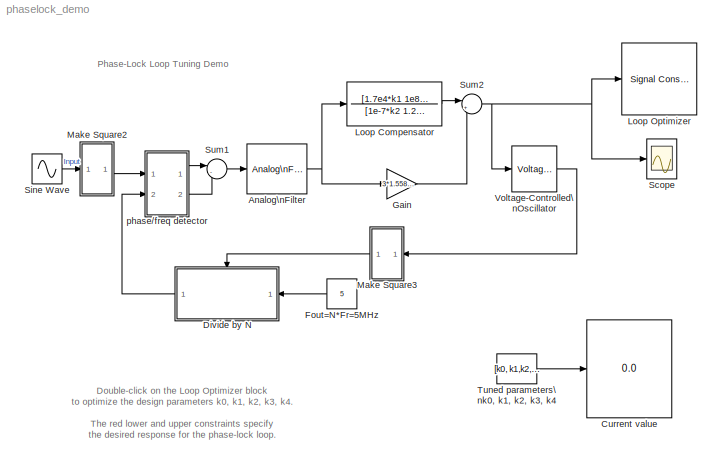
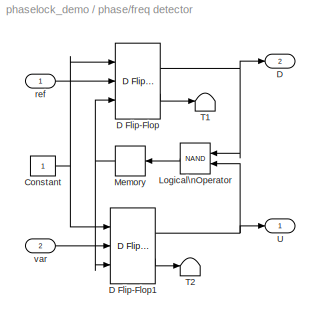
MODEL phaselock_demo
KIND model
CONFIG PreLoadFcn = load phaselock_demo
BLOCK [Reference] Analog\nFilter   REF=dspddes2/Analog\nFilter Design
  N = 4
  Ports = [1, 1]
  Rp = 3
  Rs = 80
  ShowPortLabels = on
  SourceBlock = dspddes2/Analog\nFilter Design
  SourceType = Analog Filter Design
  Whi = 80
  Wlo = 2*pi*350e3
  filttype = Lowpass
  method = Elliptic
BLOCK [Display] Current value
  Decimation = 1
  Ports = [1]
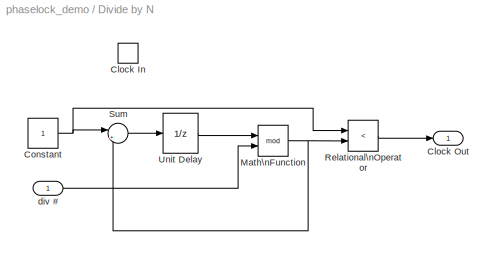
BLOCK [SubSystem] Divide by N
  AncestorBlock = rab_favorites/Divide by N
  MinAlgLoopOccurrences = off
  Ports = [1, 1, 0, 1]
  PropExecContextAcrossSSBoundary = on
  RTWSystemCode = Auto
  TreatAsAtomicUnit = on
BLOCK [TriggerPort] Divide by N/Clock In
  Ports = []
BLOCK [Outport] Divide by N/Clock Out
  BusOutputAsStruct = off
  IconDisplay = Port number
BLOCK [Constant] Divide by N/Constant
BLOCK [Math] Divide by N/Math\nFunction
  Operator = mod
  Ports = [2, 1]
BLOCK [RelationalOperator] Divide by N/Relational\nOperator
  Operator = <
BLOCK [Sum] Divide by N/Sum
  IconShape = round
  Inputs = |++
  Ports = [2, 1]
BLOCK [UnitDelay] Divide by N/Unit Delay
  SampleTime = -1
BLOCK [Inport] Divide by N/div #
  IconDisplay = Port number
  LatchInput = off
BLOCK [Constant] Fout=N*Fr=5MHz
  Value = 5
BLOCK [Gain] Gain
  Gain = 3*1.558*k4
BLOCK [TransferFcn] Loop Compensator
  Denominator = [1e-7*k2  1.2*k3  0]
  Numerator = [1.7e4*k1 1e8]*0.0026*k0
BLOCK [Reference] Loop Optimizer  REF=srolib/Signal Constraint  (lib defined in mdl_d992e5ea460a)
  DialogPosition = [0.050625 0.2075 0.38625 0.245]
  LogID = SRO_DataLog_1
  Ports = [1]
  SaveAs = OptimProject
  SaveIn = workspace
  ShowPortLabels = on
  SourceBlock = srolib/Signal Constraint
  SourceType = Signal Constraint
  Ylim = [-0.5 1.5]
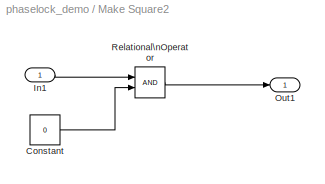
BLOCK [SubSystem] Make Square2
  MaskDescription = For input +ve values output is 1\nFor input -ve values output is 0
  MaskDisplay = plot(0,0,100,100,[90,70,70,50,50,30,30,10,10],[20,20,40,40,20,20,40,40,20],[90,87,84,80,76,73,70,67,63,60,57,53,50,47,44,40,36,33,30,27,23,20,17,13,10],[70,65,63,62,63,65,70,75,77,78,77,75,70,65,63,62,63,65,70,75,77,78,77,75,70])
  MaskIconFrame = on
  MaskIconOpaque = on
  MaskIconRotate = none
  MaskIconUnits = autoscale
  MaskType = Make Square
  MinAlgLoopOccurrences = off
  Ports = [1, 1]
  PropExecContextAcrossSSBoundary = on
  RTWSystemCode = Auto
  TreatAsAtomicUnit = off
BLOCK [Constant] Make Square2/Constant
  Value = 0
BLOCK [Inport] Make Square2/In1
  IconDisplay = Port number
  LatchInput = off
BLOCK [Outport] Make Square2/Out1
  BusOutputAsStruct = off
  IconDisplay = Port number
BLOCK [RelationalOperator] Make Square2/Relational\nOperator
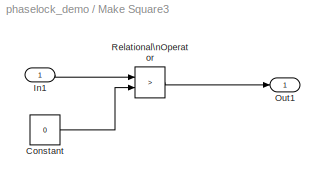
BLOCK [SubSystem] Make Square3
  MaskDescription = For input +ve values output is 1\nFor input -ve values output is 0
  MaskDisplay = plot(0,0,100,100,[90,70,70,50,50,30,30,10,10],[20,20,40,40,20,20,40,40,20],[90,87,84,80,76,73,70,67,63,60,57,53,50,47,44,40,36,33,30,27,23,20,17,13,10],[70,65,63,62,63,65,70,75,77,78,77,75,70,65,63,62,63,65,70,75,77,78,77,75,70])
  MaskIconFrame = on
  MaskIconOpaque = on
  MaskIconRotate = none
  MaskIconUnits = autoscale
  MaskType = Make Square
  MinAlgLoopOccurrences = off
  Ports = [1, 1]
  PropExecContextAcrossSSBoundary = on
  RTWSystemCode = Auto
  TreatAsAtomicUnit = off
BLOCK [Constant] Make Square3/Constant
  Value = 0
BLOCK [Inport] Make Square3/In1
  IconDisplay = Port number
  LatchInput = off
BLOCK [Outport] Make Square3/Out1
  BusOutputAsStruct = off
  IconDisplay = Port number
BLOCK [RelationalOperator] Make Square3/Relational\nOperator
  Operator = >
BLOCK [Scope] Scope
  DataFormat = StructureWithTime
  LimitDataPoints = off
  NumInputPorts = 1
  Ports = [1]
  SaveName = ScopeData1
  TimeRange = 0.00012
  YMax = 1.4
  YMin = -0.2
  ZoomMode = yonly
BLOCK [Sin] Sine Wave
  Frequency = 2*pi*(1e6)
  Phase = pi
  Ports = [0, 1]
  SampleTime = 0
  SineType = Time based
BLOCK [Sum] Sum1
  IconShape = round
  Inputs = |-+
  Ports = [2, 1]
BLOCK [Sum] Sum2
  IconShape = round
  Inputs = |++
  Ports = [2, 1]
BLOCK [Constant] Tuned parameters\nk0, k1, k2, k3, k4
  Value = [k0, k1,k2,k3 k4]'
  VectorParams1D = off
BLOCK [Reference] Voltage-Controlled\nOscillator  REF=commsynccomp2/Voltage-Controlled\nOscillator
  Ac = 1
  Fc = 4.9e6
  Kc = 0.1e6
  Ph = pi*0.6
  Ports = [1, 1]
  ShowPortLabels = on
  SourceBlock = commsynccomp2/Voltage-Controlled\nOscillator
  SourceType = Voltage-Controlled Oscillator
BLOCK [SubSystem] phase//freq detector
  MinAlgLoopOccurrences = off
  Ports = [2, 2]
  PropExecContextAcrossSSBoundary = on
  RTWSystemCode = Auto
  TreatAsAtomicUnit = off
BLOCK [Constant] phase//freq detector/Constant
BLOCK [Outport] phase//freq detector/D
  BusOutputAsStruct = off
  IconDisplay = Port number
  Port = 2
BLOCK [Reference] phase//freq detector/D Flip-Flop  REF=simulink_extras/Flip Flops/D Flip-Flop
  Ports = [3, 2]
  ShowPortLabels = on
  SourceBlock = simulink_extras/Flip Flops/D Flip-Flop
  SourceType = DFlipFlop
BLOCK [Reference] phase//freq detector/D Flip-Flop1  REF=simulink_extras/Flip Flops/D Flip-Flop
  Ports = [3, 2]
  ShowPortLabels = on
  SourceBlock = simulink_extras/Flip Flops/D Flip-Flop
  SourceType = DFlipFlop
BLOCK [Logic] phase//freq detector/Logical\nOperator
  Operator = NAND
  Ports = [2, 1]
BLOCK [Memory] phase//freq detector/Memory
BLOCK [Terminator] phase//freq detector/T1
BLOCK [Terminator] phase//freq detector/T2
BLOCK [Outport] phase//freq detector/U
  BusOutputAsStruct = off
  IconDisplay = Port number
BLOCK [Inport] phase//freq detector/ref
  IconDisplay = Port number
  LatchInput = off
BLOCK [Inport] phase//freq detector/var
  IconDisplay = Port number
  LatchInput = off
  Port = 2
ANNOTATION (root): Double-click on the Loop Optimizer block\nto optimize the design parameters k0, k1, k2, k3, k4.\n\nThe red lower and upper constraints specify\nthe desired response for the phase-lock loop.
ANNOTATION (root): Phase-Lock Loop Tuning Demo
NET Analog\nFilter :1 -> Gain:1, Loop Compensator:1
NET Divide by N/Constant:1 -> Divide by N/Relational\nOperator:1, Divide by N/Sum:1
NET Divide by N/Math\nFunction:1 -> Divide by N/Relational\nOperator:2, Divide by N/Sum:2
LINE Divide by N/Relational\nOperator:1 -> Divide by N/Clock Out:1
LINE Divide by N/Sum:1 -> Divide by N/Unit Delay:1
LINE Divide by N/Unit Delay:1 -> Divide by N/Math\nFunction:1
LINE Divide by N/div #:1 -> Divide by N/Math\nFunction:2
LINE Divide by N:1 -> phase//freq detector:2
LINE Fout=N*Fr=5MHz:1 -> Divide by N:1
LINE Gain:1 -> Sum2:2
LINE Loop Compensator:1 -> Sum2:1
LINE Make Square2/Constant:1 -> Make Square2/Relational\nOperator:2
LINE Make Square2/In1:1 -> Make Square2/Relational\nOperator:1
LINE Make Square2/Relational\nOperator:1 -> Make Square2/Out1:1
LINE Make Square2:1 -> phase//freq detector:1
LINE Make Square3/Constant:1 -> Make Square3/Relational\nOperator:2
LINE Make Square3/In1:1 -> Make Square3/Relational\nOperator:1
LINE Make Square3/Relational\nOperator:1 -> Make Square3/Out1:1
LINE Make Square3:1 -> Divide by N:trigger
LINE Sine Wave:1 -> Make Square2:1
LINE Sum1:1 -> Analog\nFilter :1
NET Sum2:1 -> Loop Optimizer:1, Scope:1, Voltage-Controlled\nOscillator:1
LINE Tuned parameters\nk0, k1, k2, k3, k4:1 -> Current value:1
LINE Voltage-Controlled\nOscillator:1 -> Make Square3:1
NET phase//freq detector/Constant:1 -> phase//freq detector/D Flip-Flop1:1, phase//freq detector/D Flip-Flop:1
NET phase//freq detector/D Flip-Flop1:1 -> phase//freq detector/Logical\nOperator:2, phase//freq detector/U:1
LINE phase//freq detector/D Flip-Flop1:2 -> phase//freq detector/T2:1
NET phase//freq detector/D Flip-Flop:1 -> phase//freq detector/D:1, phase//freq detector/Logical\nOperator:1
LINE phase//freq detector/D Flip-Flop:2 -> phase//freq detector/T1:1
LINE phase//freq detector/Logical\nOperator:1 -> phase//freq detector/Memory:1
NET phase//freq detector/Memory:1 -> phase//freq detector/D Flip-Flop1:3, phase//freq detector/D Flip-Flop:3
LINE phase//freq detector/ref:1 -> phase//freq detector/D Flip-Flop:2
LINE phase//freq detector/var:1 -> phase//freq detector/D Flip-Flop1:2
LINE phase//freq detector:1 -> Sum1:1
LINE phase//freq detector:2 -> Sum1:2
note: NET lines group one-source signal fan-out (src -> all destinations, sorted); 1:1 wires keep LINE
